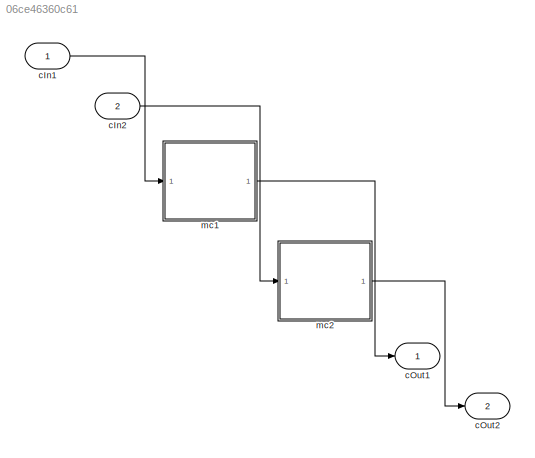
MODEL slx_06ce46360c61
KIND model
CONFIG AbsTol = auto
CONFIG EnableMultiTasking = off
CONFIG FixedStep = auto
CONFIG MaxStep = auto
CONFIG MinStep = auto
CONFIG RelTol = 1e-3
CONFIG SampleTimeConstraint = Unconstrained
CONFIG Solver = VariableStepAuto
CONFIG SolverName = VariableStepAuto
CONFIG StartTime = 0.0
CONFIG StopTime = 10.0
BLOCK [Inport] cIn1
  IconDisplay = Port number
  OutDataTypeStr = double
BLOCK [Inport] cIn2
  IconDisplay = Port number
  OutDataTypeStr = int32
  Port = 2
BLOCK [Outport] cOut1
  IconDisplay = Port number
  OutDataTypeStr = double
BLOCK [Outport] cOut2
  IconDisplay = Port number
  OutDataTypeStr = boolean
  Port = 2
BLOCK [ModelReference] mc1
  ModelNameDialog = Mission_C1
  ModelReferenceVersion = 1.1
  Ports = [1, 1]
BLOCK [ModelReference] mc2
  ModelNameDialog = Mission_C2
  ModelReferenceVersion = 1.1
  Ports = [1, 1]
LINE cIn1:1 -> mc1:1
LINE cIn2:1 -> mc2:1
LINE mc1:1 -> cOut1:1
LINE mc2:1 -> cOut2:1
